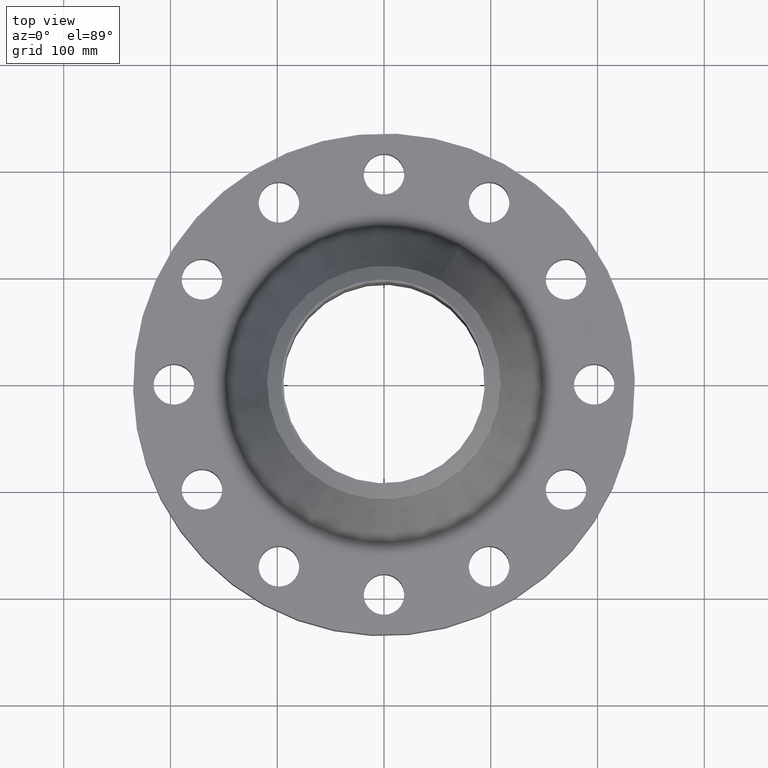
[diagram: clean part render]
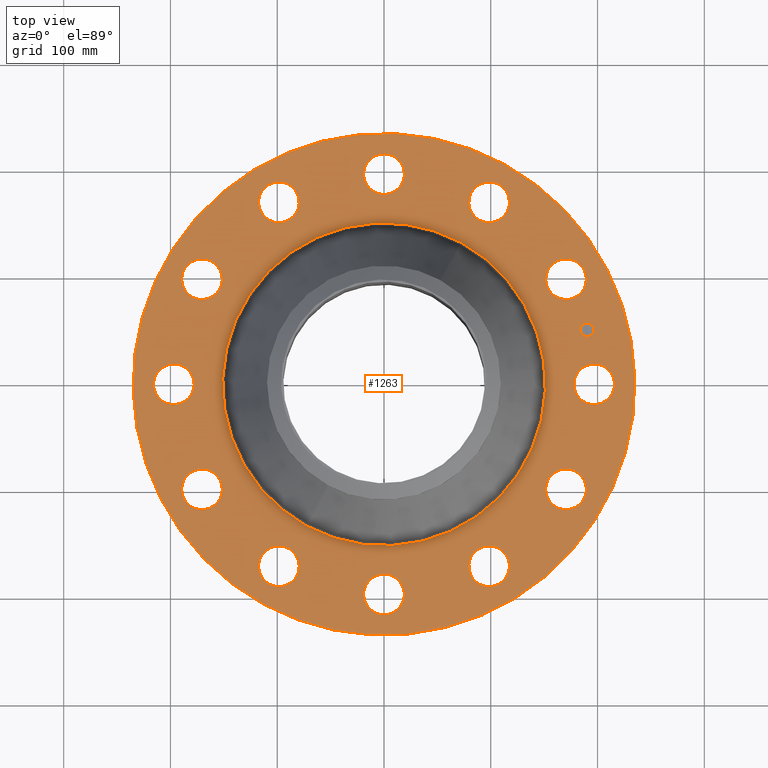
[diagram: same view with one face highlighted and labeled with its STEP entity id]
A machine part, top view. The second image highlights one B-rep face of the part: STEP entity #1263.
In plain terms, the highlighted planar face has unit normal (0, 0, -1).
Its self-contained STEP definition (entity closure, byte-faithful):
#65=AXIS2_PLACEMENT_3D('Circle Axis2P3D',#63,#64,$) ;
#82=AXIS2_PLACEMENT_3D('Circle Axis2P3D',#80,#81,$) ;
#115=AXIS2_PLACEMENT_3D('Circle Axis2P3D',#113,#114,$) ;
#139=AXIS2_PLACEMENT_3D('Circle Axis2P3D',#137,#138,$) ;
#156=AXIS2_PLACEMENT_3D('Circle Axis2P3D',#154,#155,$) ;
#191=AXIS2_PLACEMENT_3D('Circle Axis2P3D',#189,#190,$) ;
#732=AXIS2_PLACEMENT_3D('Circle Axis2P3D',#730,#731,$) ;
#744=AXIS2_PLACEMENT_3D('Circle Axis2P3D',#742,#743,$) ;
#775=AXIS2_PLACEMENT_3D('Circle Axis2P3D',#773,#774,$) ;
#787=AXIS2_PLACEMENT_3D('Circle Axis2P3D',#785,#786,$) ;
#818=AXIS2_PLACEMENT_3D('Circle Axis2P3D',#816,#817,$) ;
#830=AXIS2_PLACEMENT_3D('Circle Axis2P3D',#828,#829,$) ;
#861=AXIS2_PLACEMENT_3D('Circle Axis2P3D',#859,#860,$) ;
#873=AXIS2_PLACEMENT_3D('Circle Axis2P3D',#871,#872,$) ;
#904=AXIS2_PLACEMENT_3D('Circle Axis2P3D',#902,#903,$) ;
#916=AXIS2_PLACEMENT_3D('Circle Axis2P3D',#914,#915,$) ;
#947=AXIS2_PLACEMENT_3D('Circle Axis2P3D',#945,#946,$) ;
#959=AXIS2_PLACEMENT_3D('Circle Axis2P3D',#957,#958,$) ;
#990=AXIS2_PLACEMENT_3D('Circle Axis2P3D',#988,#989,$) ;
#1002=AXIS2_PLACEMENT_3D('Circle Axis2P3D',#1000,#1001,$) ;
#1033=AXIS2_PLACEMENT_3D('Circle Axis2P3D',#1031,#1032,$) ;
#1045=AXIS2_PLACEMENT_3D('Circle Axis2P3D',#1043,#1044,$) ;
#1076=AXIS2_PLACEMENT_3D('Circle Axis2P3D',#1074,#1075,$) ;
#1088=AXIS2_PLACEMENT_3D('Circle Axis2P3D',#1086,#1087,$) ;
#1119=AXIS2_PLACEMENT_3D('Circle Axis2P3D',#1117,#1118,$) ;
#1131=AXIS2_PLACEMENT_3D('Circle Axis2P3D',#1129,#1130,$) ;
#1162=AXIS2_PLACEMENT_3D('Circle Axis2P3D',#1160,#1161,$) ;
#1174=AXIS2_PLACEMENT_3D('Circle Axis2P3D',#1172,#1173,$) ;
#1187=AXIS2_PLACEMENT_3D('Plane Axis2P3D',#1184,#1185,#1186) ;
#1247=AXIS2_PLACEMENT_3D('Circle Axis2P3D',#1245,#1246,$) ;
#1256=AXIS2_PLACEMENT_3D('Circle Axis2P3D',#1254,#1255,$) ;
#46=CARTESIAN_POINT('Vertex',(7.09181307861,0.359569153955,2.50000000001)) ;
#60=CARTESIAN_POINT('Vertex',(8.40818692145,-0.359569153955,2.50000000001)) ;
#63=CARTESIAN_POINT('Axis2P3D Location',(7.75000000003,0.,2.50000000001)) ;
#80=CARTESIAN_POINT('Axis2P3D Location',(7.75000000003,0.,2.50000000001)) ;
#110=CARTESIAN_POINT('Vertex',(-4.43468623211,-8.11763869752,2.50000000001)) ;
#113=CARTESIAN_POINT('Axis2P3D Location',(0.,0.,2.50000000001)) ;
#117=CARTESIAN_POINT('Vertex',(4.43468623211,8.11763869752,2.50000000001)) ;
#137=CARTESIAN_POINT('Axis2P3D Location',(0.,0.,2.50000000001)) ;
#154=CARTESIAN_POINT('Axis2P3D Location',(0.,0.,2.50000000001)) ;
#158=CARTESIAN_POINT('Vertex',(2.85280860101,5.22203111654,2.50000000001)) ;
#160=CARTESIAN_POINT('Vertex',(-2.85280860101,-5.22203111654,2.50000000001)) ;
#189=CARTESIAN_POINT('Axis2P3D Location',(0.,0.,2.50000000001)) ;
#720=CARTESIAN_POINT('Vertex',(-6.32147486194,3.23451051756,2.50000000001)) ;
#727=CARTESIAN_POINT('Vertex',(-7.10191889677,4.51548948247,2.50000000001)) ;
#730=CARTESIAN_POINT('Axis2P3D Location',(-6.71169687936,3.87500000002,2.50000000001)) ;
#742=CARTESIAN_POINT('Axis2P3D Location',(-6.71169687936,3.87500000002,2.50000000001)) ;
#763=CARTESIAN_POINT('Vertex',(3.85730256105,-5.96190570799,2.50000000001)) ;
#770=CARTESIAN_POINT('Vertex',(3.89269743898,-7.46148805072,2.50000000001)) ;
#773=CARTESIAN_POINT('Axis2P3D Location',(3.87500000002,-6.71169687936,2.50000000001)) ;
#785=CARTESIAN_POINT('Axis2P3D Location',(3.87500000002,-6.71169687936,2.50000000001)) ;
#806=CARTESIAN_POINT('Vertex',(-3.85730256105,5.96190570799,2.50000000001)) ;
#813=CARTESIAN_POINT('Vertex',(-3.89269743898,7.46148805072,2.50000000001)) ;
#816=CARTESIAN_POINT('Axis2P3D Location',(-3.87500000002,6.71169687936,2.50000000001)) ;
#828=CARTESIAN_POINT('Axis2P3D Location',(-3.87500000002,6.71169687936,2.50000000001)) ;
#849=CARTESIAN_POINT('Vertex',(0.359569153955,-7.09181307861,2.50000000001)) ;
#856=CARTESIAN_POINT('Vertex',(-0.359569153955,-8.40818692145,2.50000000001)) ;
#859=CARTESIAN_POINT('Axis2P3D Location',(-6.44414303533E-016,-7.75000000003,2.50000000001)) ;
#871=CARTESIAN_POINT('Axis2P3D Location',(-6.44414303533E-016,-7.75000000003,2.50000000001)) ;
#892=CARTESIAN_POINT('Vertex',(-0.359569153955,7.09181307861,2.50000000001)) ;
#899=CARTESIAN_POINT('Vertex',(0.359569153955,8.40818692145,2.50000000001)) ;
#902=CARTESIAN_POINT('Axis2P3D Location',(-3.0468696581E-016,7.75000000003,2.50000000001)) ;
#914=CARTESIAN_POINT('Axis2P3D Location',(-3.0468696581E-016,7.75000000003,2.50000000001)) ;
#935=CARTESIAN_POINT('Vertex',(-3.23451051756,-6.32147486194,2.50000000001)) ;
#942=CARTESIAN_POINT('Vertex',(-4.51548948247,-7.10191889677,2.50000000001)) ;
#945=CARTESIAN_POINT('Axis2P3D Location',(-3.87500000002,-6.71169687936,2.50000000001)) ;
#957=CARTESIAN_POINT('Axis2P3D Location',(-3.87500000002,-6.71169687936,2.50000000001)) ;
#978=CARTESIAN_POINT('Vertex',(3.23451051756,6.32147486194,2.50000000001)) ;
#985=CARTESIAN_POINT('Vertex',(4.51548948247,7.10191889677,2.50000000001)) ;
#988=CARTESIAN_POINT('Axis2P3D Location',(3.87500000002,6.71169687936,2.50000000001)) ;
#1000=CARTESIAN_POINT('Axis2P3D Location',(3.87500000002,6.71169687936,2.50000000001)) ;
#1021=CARTESIAN_POINT('Vertex',(-5.96190570799,-3.85730256105,2.50000000001)) ;
#1028=CARTESIAN_POINT('Vertex',(-7.46148805072,-3.89269743898,2.50000000001)) ;
#1031=CARTESIAN_POINT('Axis2P3D Location',(-6.71169687936,-3.87500000002,2.50000000001)) ;
#1043=CARTESIAN_POINT('Axis2P3D Location',(-6.71169687936,-3.87500000002,2.50000000001)) ;
#1064=CARTESIAN_POINT('Vertex',(5.96190570799,3.85730256105,2.50000000001)) ;
#1071=CARTESIAN_POINT('Vertex',(7.46148805072,3.89269743898,2.50000000001)) ;
#1074=CARTESIAN_POINT('Axis2P3D Location',(6.71169687936,3.87500000002,2.50000000001)) ;
#1086=CARTESIAN_POINT('Axis2P3D Location',(6.71169687936,3.87500000002,2.50000000001)) ;
#1107=CARTESIAN_POINT('Vertex',(-7.09181307861,-0.359569153955,2.50000000001)) ;
#1114=CARTESIAN_POINT('Vertex',(-8.40818692145,0.359569153955,2.50000000001)) ;
#1117=CARTESIAN_POINT('Axis2P3D Location',(-7.75000000003,-9.49101269343E-016,2.50000000001)) ;
#1129=CARTESIAN_POINT('Axis2P3D Location',(-7.75000000003,-9.49101269343E-016,2.50000000001)) ;
#1150=CARTESIAN_POINT('Vertex',(6.32147486194,-3.23451051756,2.50000000001)) ;
#1157=CARTESIAN_POINT('Vertex',(7.10191889677,-4.51548948247,2.50000000001)) ;
#1160=CARTESIAN_POINT('Axis2P3D Location',(6.71169687936,-3.87500000002,2.50000000001)) ;
#1172=CARTESIAN_POINT('Axis2P3D Location',(6.71169687936,-3.87500000002,2.50000000001)) ;
#1184=CARTESIAN_POINT('Axis2P3D Location',(0.,9.25000000004,2.50000000001)) ;
#1245=CARTESIAN_POINT('Axis2P3D Location',(7.48592515377,2.00584759955,2.50000000001)) ;
#1249=CARTESIAN_POINT('Vertex',(7.42186744011,2.24491424156,2.50000000001)) ;
#1251=CARTESIAN_POINT('Vertex',(7.54998286743,1.76678095755,2.50000000001)) ;
#1254=CARTESIAN_POINT('Axis2P3D Location',(7.48592515377,2.00584759955,2.50000000001)) ;
#64=DIRECTION('Axis2P3D Direction',(0.,-0.,-0.0393700787402)) ;
#81=DIRECTION('Axis2P3D Direction',(0.,-0.,-0.0393700787402)) ;
#114=DIRECTION('Axis2P3D Direction',(0.,0.,-0.0393700787402)) ;
#138=DIRECTION('Axis2P3D Direction',(0.,0.,-0.0393700787402)) ;
#155=DIRECTION('Axis2P3D Direction',(0.,0.,-0.0393700787402)) ;
#190=DIRECTION('Axis2P3D Direction',(0.,0.,-0.0393700787402)) ;
#731=DIRECTION('Axis2P3D Direction',(0.,0.,-0.0393700787402)) ;
#743=DIRECTION('Axis2P3D Direction',(0.,0.,-0.0393700787402)) ;
#774=DIRECTION('Axis2P3D Direction',(0.,-0.,-0.0393700787402)) ;
#786=DIRECTION('Axis2P3D Direction',(0.,-0.,-0.0393700787402)) ;
#817=DIRECTION('Axis2P3D Direction',(0.,0.,-0.0393700787402)) ;
#829=DIRECTION('Axis2P3D Direction',(0.,0.,-0.0393700787402)) ;
#860=DIRECTION('Axis2P3D Direction',(0.,-0.,-0.0393700787402)) ;
#872=DIRECTION('Axis2P3D Direction',(0.,-0.,-0.0393700787402)) ;
#903=DIRECTION('Axis2P3D Direction',(0.,0.,-0.0393700787402)) ;
#915=DIRECTION('Axis2P3D Direction',(0.,0.,-0.0393700787402)) ;
#946=DIRECTION('Axis2P3D Direction',(-0.,0.,-0.0393700787402)) ;
#958=DIRECTION('Axis2P3D Direction',(-0.,0.,-0.0393700787402)) ;
#989=DIRECTION('Axis2P3D Direction',(0.,0.,-0.0393700787402)) ;
#1001=DIRECTION('Axis2P3D Direction',(0.,0.,-0.0393700787402)) ;
#1032=DIRECTION('Axis2P3D Direction',(-0.,0.,-0.0393700787402)) ;
#1044=DIRECTION('Axis2P3D Direction',(-0.,0.,-0.0393700787402)) ;
#1075=DIRECTION('Axis2P3D Direction',(0.,0.,-0.0393700787402)) ;
#1087=DIRECTION('Axis2P3D Direction',(0.,0.,-0.0393700787402)) ;
#1118=DIRECTION('Axis2P3D Direction',(-0.,0.,-0.0393700787402)) ;
#1130=DIRECTION('Axis2P3D Direction',(-0.,0.,-0.0393700787402)) ;
#1161=DIRECTION('Axis2P3D Direction',(0.,-0.,-0.0393700787402)) ;
#1173=DIRECTION('Axis2P3D Direction',(0.,-0.,-0.0393700787402)) ;
#1185=DIRECTION('Axis2P3D Direction',(0.,0.,-0.0393700787402)) ;
#1186=DIRECTION('Axis2P3D XDirection',(0.0393700787402,0.,0.)) ;
#1246=DIRECTION('Axis2P3D Direction',(0.,0.,-0.0393700787402)) ;
#1255=DIRECTION('Axis2P3D Direction',(0.,0.,-0.0393700787402)) ;
#1190=ORIENTED_EDGE('',*,*,#141,.F.) ;
#1191=ORIENTED_EDGE('',*,*,#119,.F.) ;
#1194=ORIENTED_EDGE('',*,*,#67,.T.) ;
#1195=ORIENTED_EDGE('',*,*,#84,.T.) ;
#1198=ORIENTED_EDGE('',*,*,#193,.T.) ;
#1199=ORIENTED_EDGE('',*,*,#162,.T.) ;
#1202=ORIENTED_EDGE('',*,*,#1176,.T.) ;
#1203=ORIENTED_EDGE('',*,*,#1164,.T.) ;
#1206=ORIENTED_EDGE('',*,*,#789,.T.) ;
#1207=ORIENTED_EDGE('',*,*,#777,.T.) ;
#1210=ORIENTED_EDGE('',*,*,#875,.T.) ;
#1211=ORIENTED_EDGE('',*,*,#863,.T.) ;
#1214=ORIENTED_EDGE('',*,*,#961,.T.) ;
#1215=ORIENTED_EDGE('',*,*,#949,.T.) ;
#1218=ORIENTED_EDGE('',*,*,#1047,.T.) ;
#1219=ORIENTED_EDGE('',*,*,#1035,.T.) ;
#1222=ORIENTED_EDGE('',*,*,#1133,.T.) ;
#1223=ORIENTED_EDGE('',*,*,#1121,.T.) ;
#1226=ORIENTED_EDGE('',*,*,#746,.T.) ;
#1227=ORIENTED_EDGE('',*,*,#734,.T.) ;
#1230=ORIENTED_EDGE('',*,*,#832,.T.) ;
#1231=ORIENTED_EDGE('',*,*,#820,.T.) ;
#1234=ORIENTED_EDGE('',*,*,#918,.T.) ;
#1235=ORIENTED_EDGE('',*,*,#906,.T.) ;
#1238=ORIENTED_EDGE('',*,*,#1004,.T.) ;
#1239=ORIENTED_EDGE('',*,*,#992,.T.) ;
#1242=ORIENTED_EDGE('',*,*,#1090,.T.) ;
#1243=ORIENTED_EDGE('',*,*,#1078,.T.) ;
#1260=ORIENTED_EDGE('',*,*,#1253,.T.) ;
#1261=ORIENTED_EDGE('',*,*,#1258,.T.) ;
#1196=FACE_BOUND('',#1193,.T.) ;
#1200=FACE_BOUND('',#1197,.T.) ;
#1204=FACE_BOUND('',#1201,.T.) ;
#1208=FACE_BOUND('',#1205,.T.) ;
#1212=FACE_BOUND('',#1209,.T.) ;
#1216=FACE_BOUND('',#1213,.T.) ;
#1220=FACE_BOUND('',#1217,.T.) ;
#1224=FACE_BOUND('',#1221,.T.) ;
#1228=FACE_BOUND('',#1225,.T.) ;
#1232=FACE_BOUND('',#1229,.T.) ;
#1236=FACE_BOUND('',#1233,.T.) ;
#1240=FACE_BOUND('',#1237,.T.) ;
#1244=FACE_BOUND('',#1241,.T.) ;
#1262=FACE_BOUND('',#1259,.T.) ;
#1263=ADVANCED_FACE('PartBody',(#1192,#1196,#1200,#1204,#1208,#1212,#1216,#1220,#1224,#1228,#1232,#1236,#1240,#1244,#1262),#1188,.F.) ;
#66=CIRCLE('generated circle',#65,0.750000000003) ;
#83=CIRCLE('generated circle',#82,0.750000000003) ;
#116=CIRCLE('generated circle',#115,9.25000000004) ;
#140=CIRCLE('generated circle',#139,9.25000000004) ;
#157=CIRCLE('generated circle',#156,5.95047274559) ;
#192=CIRCLE('generated circle',#191,5.95047274559) ;
#733=CIRCLE('generated circle',#732,0.750000000003) ;
#745=CIRCLE('generated circle',#744,0.750000000003) ;
#776=CIRCLE('generated circle',#775,0.750000000003) ;
#788=CIRCLE('generated circle',#787,0.750000000003) ;
#819=CIRCLE('generated circle',#818,0.750000000003) ;
#831=CIRCLE('generated circle',#830,0.750000000003) ;
#862=CIRCLE('generated circle',#861,0.750000000003) ;
#874=CIRCLE('generated circle',#873,0.750000000003) ;
#905=CIRCLE('generated circle',#904,0.750000000003) ;
#917=CIRCLE('generated circle',#916,0.750000000003) ;
#948=CIRCLE('generated circle',#947,0.750000000003) ;
#960=CIRCLE('generated circle',#959,0.750000000003) ;
#991=CIRCLE('generated circle',#990,0.750000000003) ;
#1003=CIRCLE('generated circle',#1002,0.750000000003) ;
#1034=CIRCLE('generated circle',#1033,0.750000000003) ;
#1046=CIRCLE('generated circle',#1045,0.750000000003) ;
#1077=CIRCLE('generated circle',#1076,0.750000000003) ;
#1089=CIRCLE('generated circle',#1088,0.750000000003) ;
#1120=CIRCLE('generated circle',#1119,0.750000000003) ;
#1132=CIRCLE('generated circle',#1131,0.750000000003) ;
#1163=CIRCLE('generated circle',#1162,0.750000000003) ;
#1175=CIRCLE('generated circle',#1174,0.750000000003) ;
#1248=CIRCLE('generated circle',#1247,0.247500000001) ;
#1257=CIRCLE('generated circle',#1256,0.247500000001) ;
#67=EDGE_CURVE('',#47,#61,#66,.T.) ;
#84=EDGE_CURVE('',#61,#47,#83,.T.) ;
#119=EDGE_CURVE('',#111,#118,#116,.T.) ;
#141=EDGE_CURVE('',#118,#111,#140,.T.) ;
#162=EDGE_CURVE('',#159,#161,#157,.T.) ;
#193=EDGE_CURVE('',#161,#159,#192,.T.) ;
#734=EDGE_CURVE('',#721,#728,#733,.T.) ;
#746=EDGE_CURVE('',#728,#721,#745,.T.) ;
#777=EDGE_CURVE('',#764,#771,#776,.T.) ;
#789=EDGE_CURVE('',#771,#764,#788,.T.) ;
#820=EDGE_CURVE('',#807,#814,#819,.T.) ;
#832=EDGE_CURVE('',#814,#807,#831,.T.) ;
#863=EDGE_CURVE('',#850,#857,#862,.T.) ;
#875=EDGE_CURVE('',#857,#850,#874,.T.) ;
#906=EDGE_CURVE('',#893,#900,#905,.T.) ;
#918=EDGE_CURVE('',#900,#893,#917,.T.) ;
#949=EDGE_CURVE('',#936,#943,#948,.T.) ;
#961=EDGE_CURVE('',#943,#936,#960,.T.) ;
#992=EDGE_CURVE('',#979,#986,#991,.T.) ;
#1004=EDGE_CURVE('',#986,#979,#1003,.T.) ;
#1035=EDGE_CURVE('',#1022,#1029,#1034,.T.) ;
#1047=EDGE_CURVE('',#1029,#1022,#1046,.T.) ;
#1078=EDGE_CURVE('',#1065,#1072,#1077,.T.) ;
#1090=EDGE_CURVE('',#1072,#1065,#1089,.T.) ;
#1121=EDGE_CURVE('',#1108,#1115,#1120,.T.) ;
#1133=EDGE_CURVE('',#1115,#1108,#1132,.T.) ;
#1164=EDGE_CURVE('',#1151,#1158,#1163,.T.) ;
#1176=EDGE_CURVE('',#1158,#1151,#1175,.T.) ;
#1253=EDGE_CURVE('',#1250,#1252,#1248,.T.) ;
#1258=EDGE_CURVE('',#1252,#1250,#1257,.T.) ;
#1189=EDGE_LOOP('',(#1190,#1191)) ;
#1193=EDGE_LOOP('',(#1194,#1195)) ;
#1197=EDGE_LOOP('',(#1198,#1199)) ;
#1201=EDGE_LOOP('',(#1202,#1203)) ;
#1205=EDGE_LOOP('',(#1206,#1207)) ;
#1209=EDGE_LOOP('',(#1210,#1211)) ;
#1213=EDGE_LOOP('',(#1214,#1215)) ;
#1217=EDGE_LOOP('',(#1218,#1219)) ;
#1221=EDGE_LOOP('',(#1222,#1223)) ;
#1225=EDGE_LOOP('',(#1226,#1227)) ;
#1229=EDGE_LOOP('',(#1230,#1231)) ;
#1233=EDGE_LOOP('',(#1234,#1235)) ;
#1237=EDGE_LOOP('',(#1238,#1239)) ;
#1241=EDGE_LOOP('',(#1242,#1243)) ;
#1259=EDGE_LOOP('',(#1260,#1261)) ;
#1192=FACE_OUTER_BOUND('',#1189,.T.) ;
#1188=PLANE('',#1187) ;
#47=VERTEX_POINT('',#46) ;
#61=VERTEX_POINT('',#60) ;
#111=VERTEX_POINT('',#110) ;
#118=VERTEX_POINT('',#117) ;
#159=VERTEX_POINT('',#158) ;
#161=VERTEX_POINT('',#160) ;
#721=VERTEX_POINT('',#720) ;
#728=VERTEX_POINT('',#727) ;
#764=VERTEX_POINT('',#763) ;
#771=VERTEX_POINT('',#770) ;
#807=VERTEX_POINT('',#806) ;
#814=VERTEX_POINT('',#813) ;
#850=VERTEX_POINT('',#849) ;
#857=VERTEX_POINT('',#856) ;
#893=VERTEX_POINT('',#892) ;
#900=VERTEX_POINT('',#899) ;
#936=VERTEX_POINT('',#935) ;
#943=VERTEX_POINT('',#942) ;
#979=VERTEX_POINT('',#978) ;
#986=VERTEX_POINT('',#985) ;
#1022=VERTEX_POINT('',#1021) ;
#1029=VERTEX_POINT('',#1028) ;
#1065=VERTEX_POINT('',#1064) ;
#1072=VERTEX_POINT('',#1071) ;
#1108=VERTEX_POINT('',#1107) ;
#1115=VERTEX_POINT('',#1114) ;
#1151=VERTEX_POINT('',#1150) ;
#1158=VERTEX_POINT('',#1157) ;
#1250=VERTEX_POINT('',#1249) ;
#1252=VERTEX_POINT('',#1251) ;